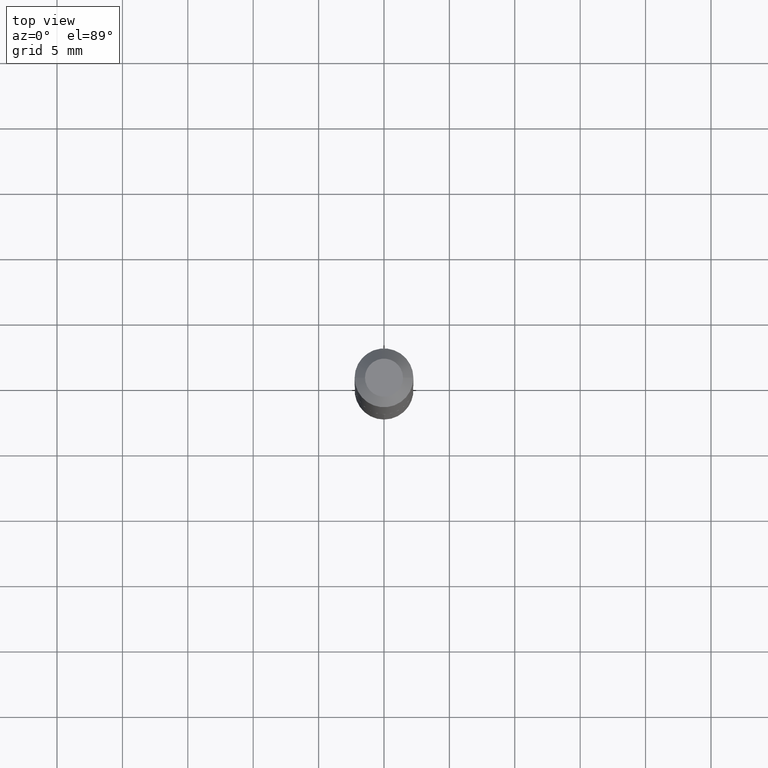
[diagram: clean part render]
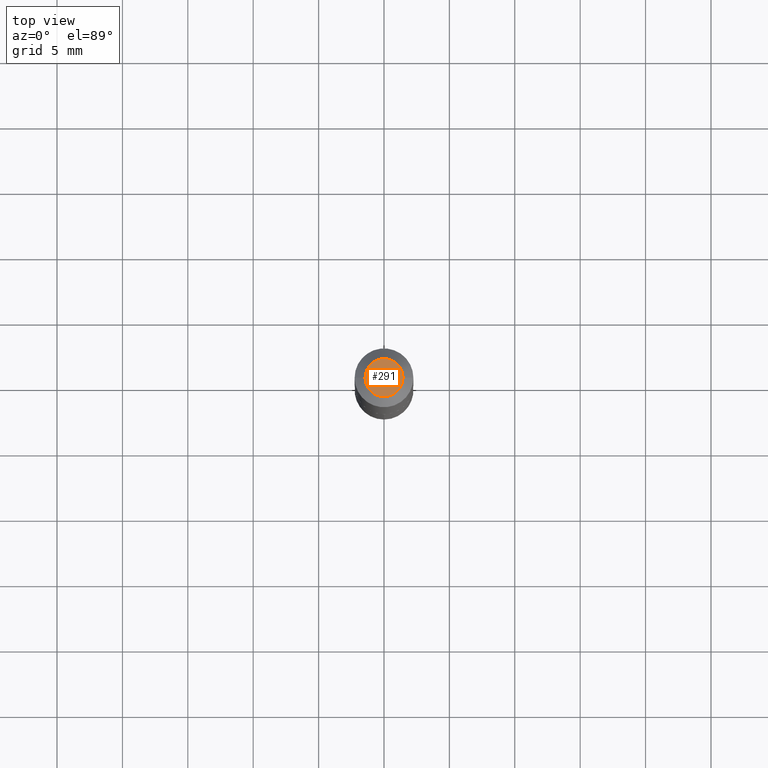
[diagram: same view with one face highlighted and labeled with its STEP entity id]
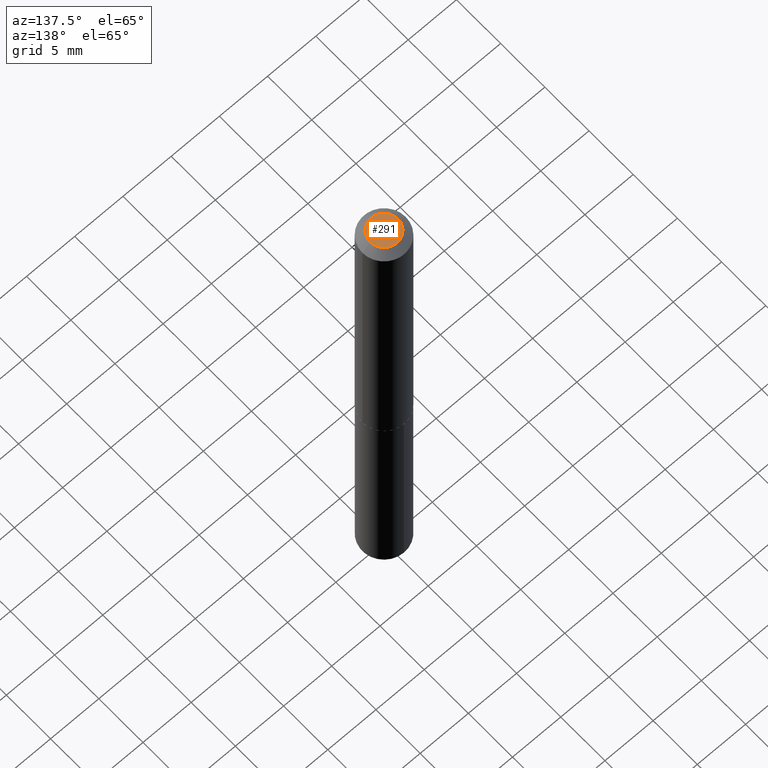
[diagram: same view with one face highlighted and labeled with its STEP entity id]
A machine part, top view. The second image highlights one B-rep face of the part: STEP entity #291.
A second angle (auxiliary view) of the same face is appended — the face is thin or edge-on in the first view.
In plain terms, the highlighted planar face has unit normal (0, -0, -1).
Its self-contained STEP definition (entity closure, byte-faithful):
#9 = PLANE ( 'NONE',  #383 ) ;
#11 = FACE_OUTER_BOUND ( 'NONE', #44, .T. ) ;
#44 = EDGE_LOOP ( 'NONE', ( #227, #91 ) ) ;
#77 = EDGE_CURVE ( 'NONE', #342, #185, #252, .T. ) ;
#86 = CARTESIAN_POINT ( 'NONE',  ( -0.05724999999999999534, 4.543290092169620810E-16, -1.836970198750900287E-19 ) ) ;
#91 = ORIENTED_EDGE ( 'NONE', *, *, #77, .T. ) ;
#114 = CARTESIAN_POINT ( 'NONE',  ( 0.05724999999999999534, -5.545131875070248356E-16, -1.836970198687676100E-19 ) ) ;
#124 = AXIS2_PLACEMENT_3D ( 'NONE', #205, #328, #323 ) ;
#127 = EDGE_CURVE ( 'NONE', #185, #342, #259, .T. ) ;
#133 = AXIS2_PLACEMENT_3D ( 'NONE', #171, #265, #361 ) ;
#171 = CARTESIAN_POINT ( 'NONE',  ( 4.492253318864007917E-48, -6.413747168845486278E-34, -1.836970198721037058E-19 ) ) ;
#185 = VERTEX_POINT ( 'NONE', #86 ) ;
#205 = CARTESIAN_POINT ( 'NONE',  ( 4.492253318864007917E-48, -6.413747168845486278E-34, -1.836970198721037058E-19 ) ) ;
#227 = ORIENTED_EDGE ( 'NONE', *, *, #127, .T. ) ;
#252 = CIRCLE ( 'NONE', #133, 0.05724999999999999534 ) ;
#259 = CIRCLE ( 'NONE', #124, 0.05724999999999999534 ) ;
#265 = DIRECTION ( 'NONE',  ( -2.445468806185136597E-29, 3.491481338843145583E-15, 1.000000000000000000 ) ) ;
#291 = ADVANCED_FACE ( 'NONE', ( #11 ), #9, .F. ) ;
#300 = CARTESIAN_POINT ( 'NONE',  ( 2.246126659432003959E-48, -3.206873584422743139E-34, -9.184850993605185290E-20 ) ) ;
#309 = DIRECTION ( 'NONE',  ( 2.438088387897960049E-29, -3.491481338843145188E-15, -1.000000000000000000 ) ) ;
#323 = DIRECTION ( 'NONE',  ( 1.000000000000000000, -6.982962677686265922E-15, 4.876152498572012658E-29 ) ) ;
#328 = DIRECTION ( 'NONE',  ( -2.445468806185136597E-29, 3.491481338843145583E-15, 1.000000000000000000 ) ) ;
#342 = VERTEX_POINT ( 'NONE', #114 ) ;
#361 = DIRECTION ( 'NONE',  ( 1.000000000000000000, -6.982962677686265922E-15, 4.876152498572012658E-29 ) ) ;
#369 = DIRECTION ( 'NONE',  ( -1.000000000000000000, 6.982962677686265922E-15, -4.876176775795935793E-29 ) ) ;
#383 = AXIS2_PLACEMENT_3D ( 'NONE', #300, #309, #369 ) ;